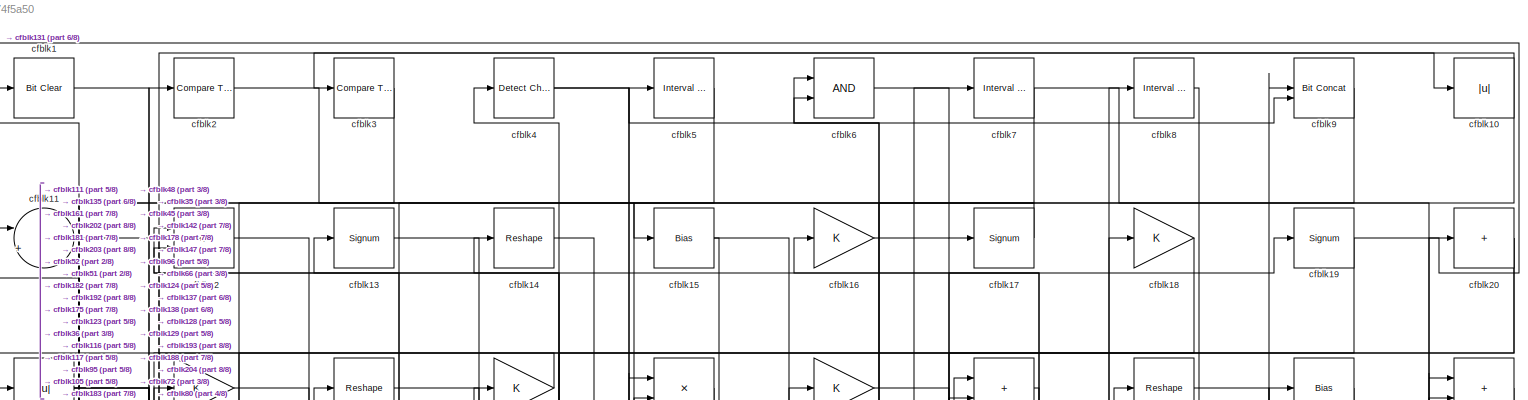
[diagram: root canvas - part 1/8, full width, top band]
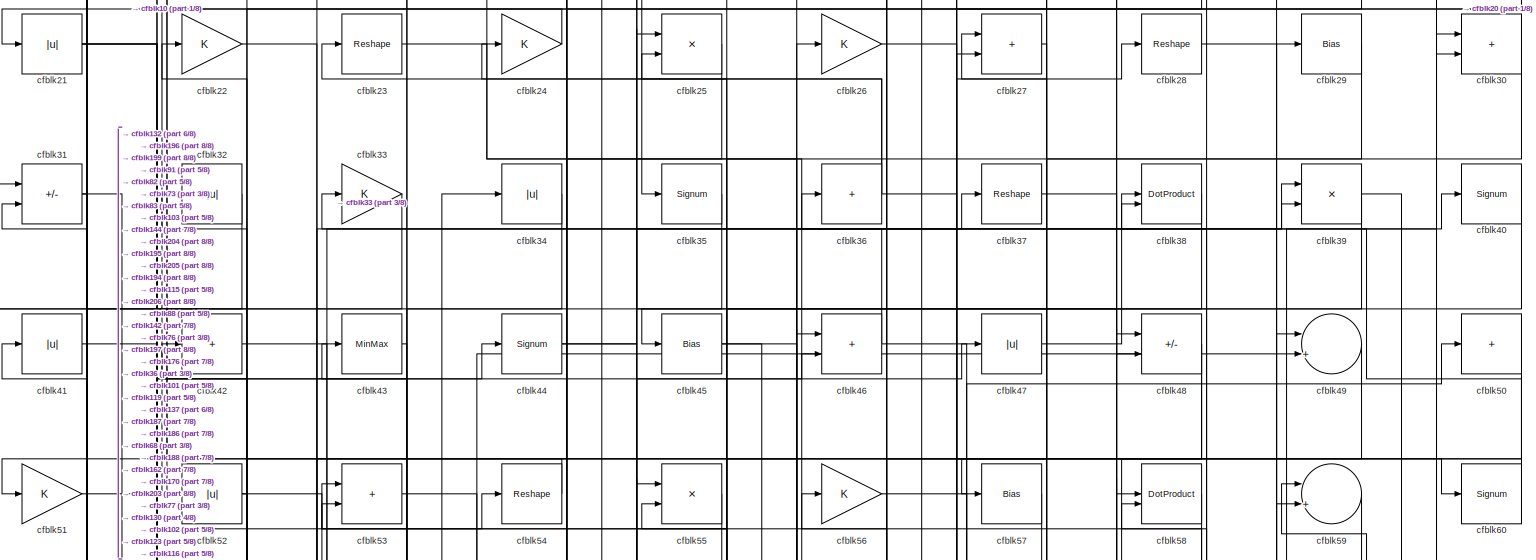
[diagram: root canvas - part 2/8, full width, top band]
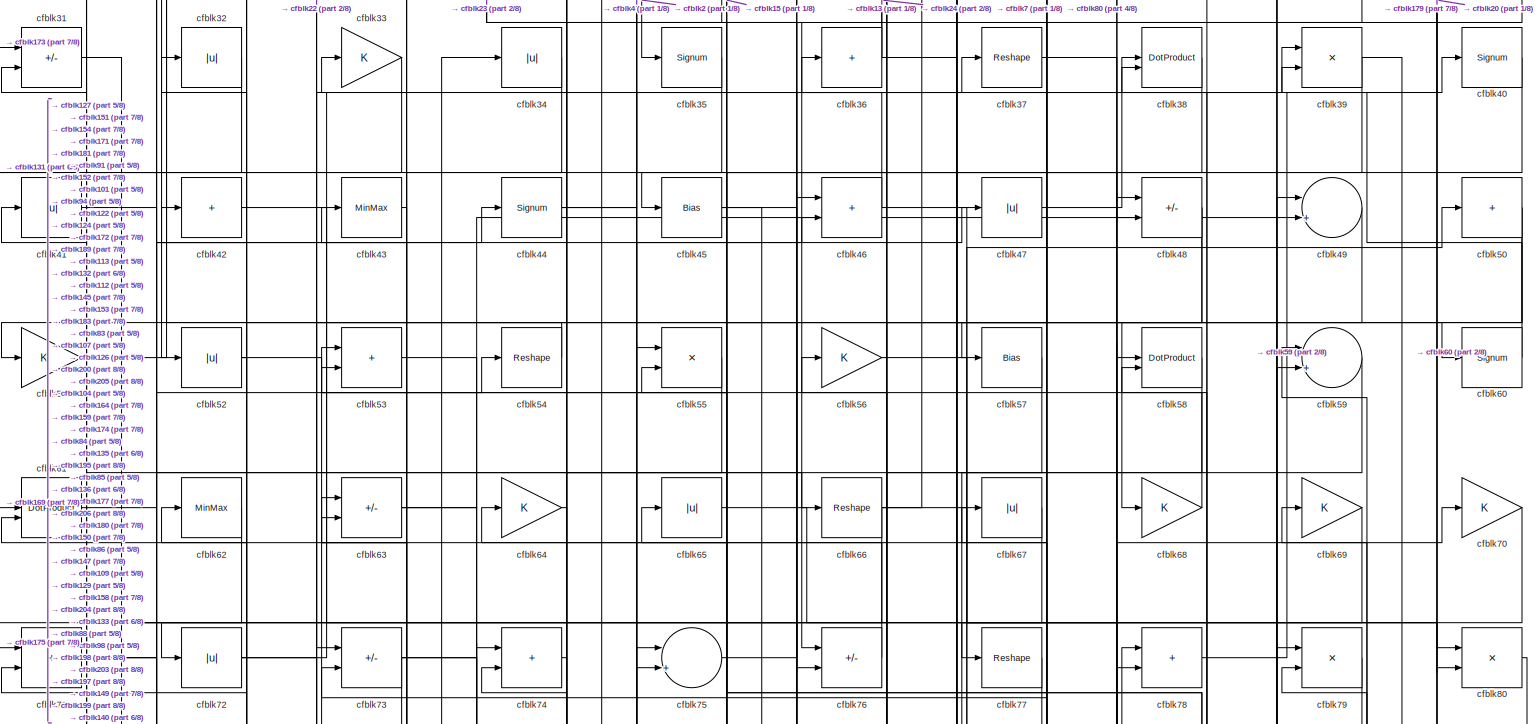
[diagram: root canvas - part 3/8, full width, top band]
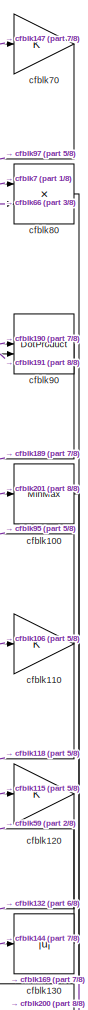
[diagram: root canvas - part 4/8, middle right region]
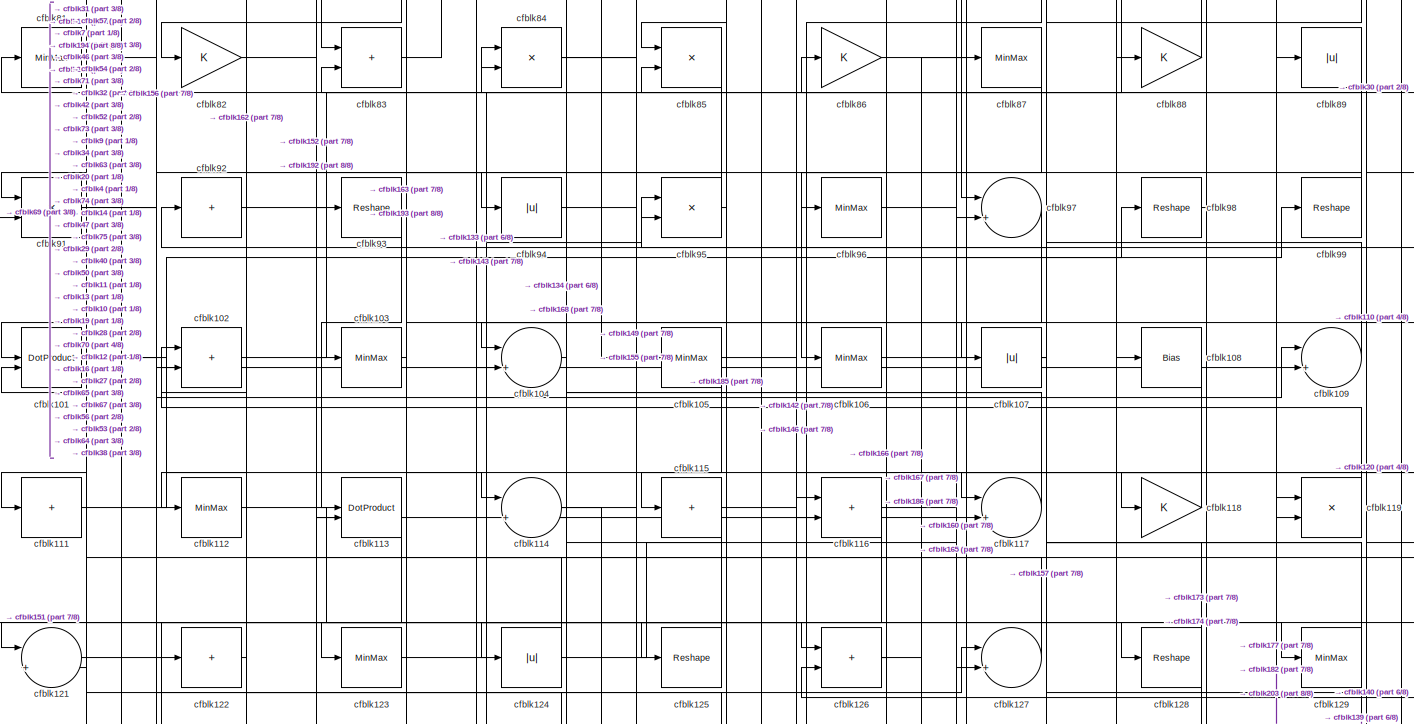
[diagram: root canvas - part 5/8, full width, middle band]
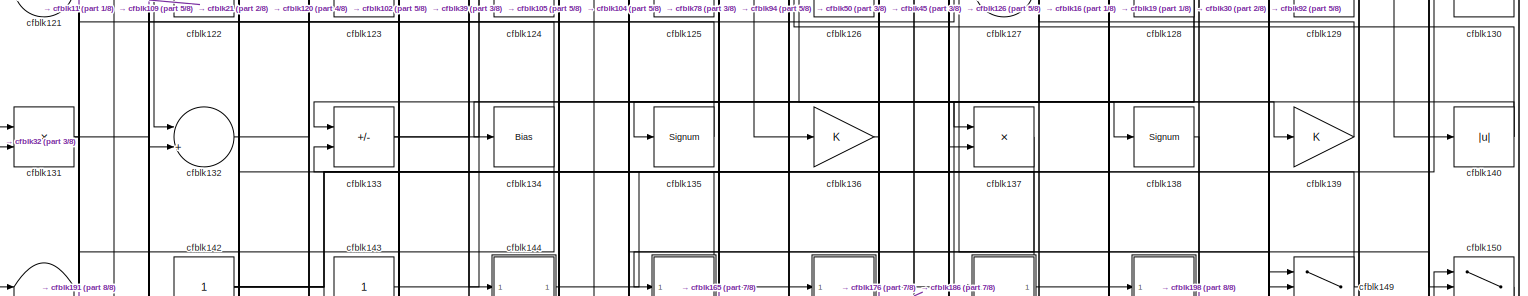
[diagram: root canvas - part 6/8, full width, middle band]
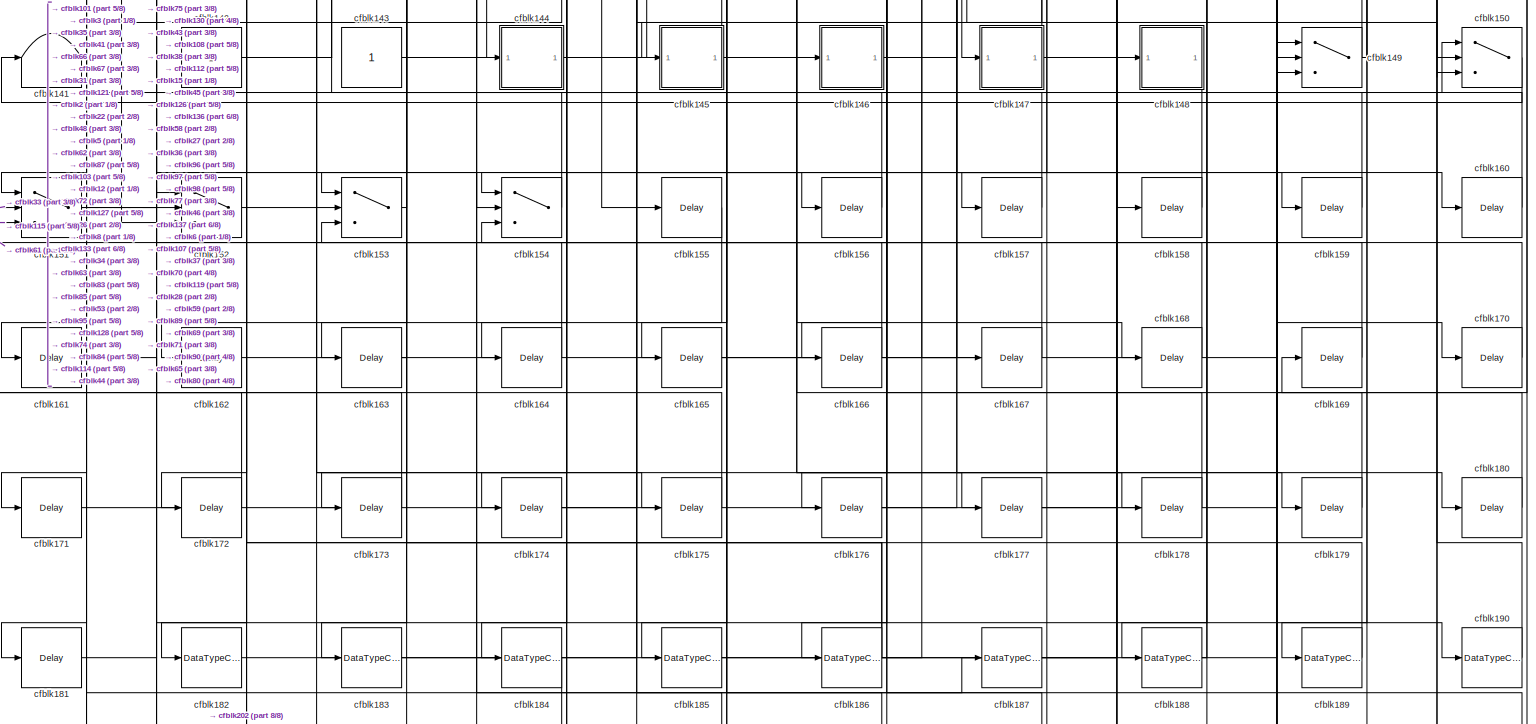
[diagram: root canvas - part 7/8, full width, bottom band]
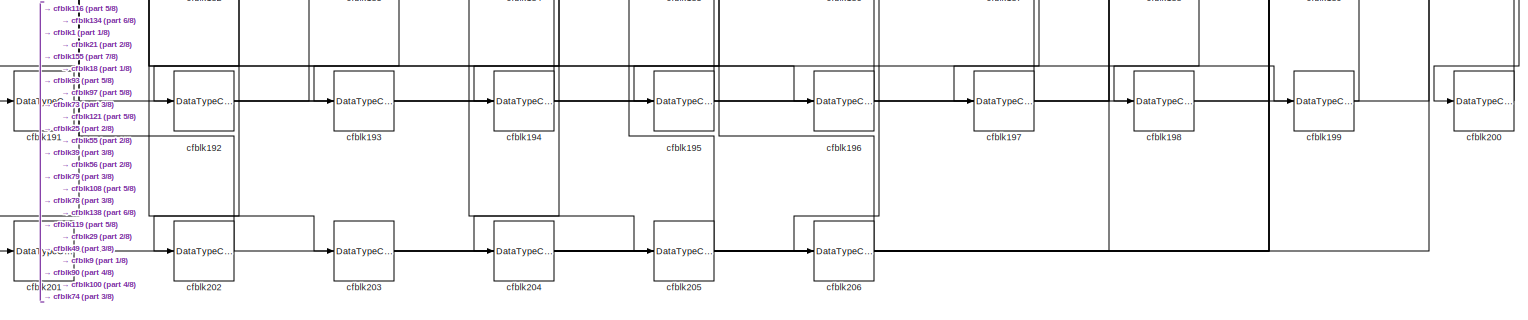
[diagram: root canvas - part 8/8, full width, bottom band]
MODEL slx_47e4374f5a50
KIND model
CONFIG AbsTol = auto
CONFIG EnableMultiTasking = off
CONFIG FixedStep = auto
CONFIG MaxStep = auto
CONFIG MinStep = auto
CONFIG RelTol = 1e-3
CONFIG SampleTimeConstraint = Unconstrained
CONFIG SolverName = VariableStepAuto
CONFIG StartTime = 0.0
CONFIG StopTime = 10.0
BLOCK [Reference] cfblk1  REF=simulink/Logic and Bit
Operations/Bit Clear
  LibrarySourceBlock = hdlsllib/Logic and Bit\nOperations/Bit Clear
  SourceBlock = simulink/Logic and Bit\nOperations/Bit Clear
  SourceType = Bit Clear
BLOCK [Abs] cfblk10
  SaturateOnIntegerOverflow = off
BLOCK [MinMax] cfblk100
BLOCK [DotProduct] cfblk101
  OutDataTypeStr = Inherit: Inherit via internal rule
BLOCK [Sum] cfblk102
  IconShape = rectangular
BLOCK [MinMax] cfblk103
BLOCK [Sum] cfblk104
  Inputs = |++
BLOCK [MinMax] cfblk105
BLOCK [MinMax] cfblk106
BLOCK [Abs] cfblk107
  SaturateOnIntegerOverflow = off
BLOCK [Bias] cfblk108
  Bias = 0.0
  SaturateOnIntegerOverflow = off
BLOCK [Sum] cfblk109
  Inputs = |++
BLOCK [Sum] cfblk11
  Inputs = |++
BLOCK [Gain] cfblk110
BLOCK [Sum] cfblk111
  IconShape = rectangular
  Inputs = +
BLOCK [MinMax] cfblk112
BLOCK [DotProduct] cfblk113
  OutDataTypeStr = Inherit: Inherit via internal rule
BLOCK [Sum] cfblk114
  Inputs = |++
BLOCK [Sum] cfblk115
  IconShape = rectangular
  Inputs = +
BLOCK [Sum] cfblk116
  IconShape = rectangular
BLOCK [Sum] cfblk117
  Inputs = |++
BLOCK [Gain] cfblk118
BLOCK [Product] cfblk119
  Inputs = */
  RndMeth = Zero
  SaturateOnIntegerOverflow = on
BLOCK [Sum] cfblk12
  IconShape = rectangular
  Inputs = +-
BLOCK [Gain] cfblk120
BLOCK [Sum] cfblk121
  Inputs = |++
BLOCK [Sum] cfblk122
  IconShape = rectangular
  Inputs = +
BLOCK [MinMax] cfblk123
BLOCK [Abs] cfblk124
  SaturateOnIntegerOverflow = off
BLOCK [Reshape] cfblk125
BLOCK [Sum] cfblk126
  IconShape = rectangular
BLOCK [Sum] cfblk127
  Inputs = |++
BLOCK [Reshape] cfblk128
BLOCK [MinMax] cfblk129
BLOCK [Signum] cfblk13
BLOCK [Abs] cfblk130
  SaturateOnIntegerOverflow = off
BLOCK [Product] cfblk131
  Inputs = */
  RndMeth = Zero
  SaturateOnIntegerOverflow = on
BLOCK [Sum] cfblk132
  Inputs = |++
BLOCK [Sum] cfblk133
  IconShape = rectangular
  Inputs = +-
BLOCK [Bias] cfblk134
  Bias = 0.0
  SaturateOnIntegerOverflow = off
BLOCK [Signum] cfblk135
BLOCK [Gain] cfblk136
BLOCK [Product] cfblk137
  Inputs = */
  RndMeth = Zero
  SaturateOnIntegerOverflow = on
BLOCK [Signum] cfblk138
BLOCK [Gain] cfblk139
BLOCK [Reshape] cfblk14
BLOCK [Abs] cfblk140
  SaturateOnIntegerOverflow = off
BLOCK [Terminator] cfblk141
BLOCK [Constant] cfblk142
  SampleTime = -1
BLOCK [Constant] cfblk143
  SampleTime = -1
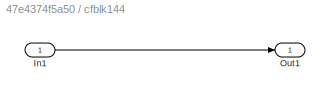
BLOCK [SubSystem] cfblk144
  LibrarySourceBlock = hdlsllib/Ports &\nSubsystems/Subsystem
BLOCK [Inport] cfblk144/In1
BLOCK [Outport] cfblk144/Out1
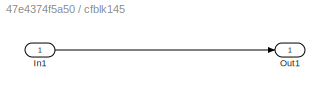
BLOCK [SubSystem] cfblk145
  LibrarySourceBlock = hdlsllib/Ports &\nSubsystems/Subsystem
BLOCK [Inport] cfblk145/In1
BLOCK [Outport] cfblk145/Out1
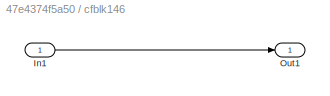
BLOCK [SubSystem] cfblk146
  LibrarySourceBlock = hdlsllib/Ports &\nSubsystems/Subsystem
BLOCK [Inport] cfblk146/In1
BLOCK [Outport] cfblk146/Out1
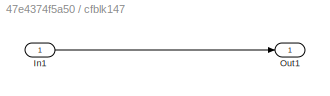
BLOCK [SubSystem] cfblk147
  LibrarySourceBlock = hdlsllib/Ports &\nSubsystems/Subsystem
BLOCK [Inport] cfblk147/In1
BLOCK [Outport] cfblk147/Out1
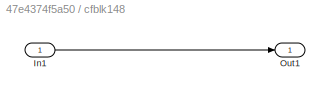
BLOCK [SubSystem] cfblk148
  LibrarySourceBlock = hdlsllib/Ports &\nSubsystems/Subsystem
BLOCK [Inport] cfblk148/In1
BLOCK [Outport] cfblk148/Out1
BLOCK [Switch] cfblk149
  InputSameDT = off
  SaturateOnIntegerOverflow = off
BLOCK [Bias] cfblk15
  Bias = 0.0
  SaturateOnIntegerOverflow = off
BLOCK [Switch] cfblk150
  InputSameDT = off
  SaturateOnIntegerOverflow = off
BLOCK [Switch] cfblk151
  InputSameDT = off
  SaturateOnIntegerOverflow = off
BLOCK [Switch] cfblk152
  InputSameDT = off
  SaturateOnIntegerOverflow = off
BLOCK [Switch] cfblk153
  InputSameDT = off
  SaturateOnIntegerOverflow = off
BLOCK [Switch] cfblk154
  InputSameDT = off
  SaturateOnIntegerOverflow = off
BLOCK [Delay] cfblk155
  InputPortMap = u0
  SampleTime = 1
BLOCK [Delay] cfblk156
  InputPortMap = u0
  SampleTime = 1
BLOCK [Delay] cfblk157
  InputPortMap = u0
  SampleTime = 1
BLOCK [Delay] cfblk158
  InputPortMap = u0
  SampleTime = 1
BLOCK [Delay] cfblk159
  InputPortMap = u0
  SampleTime = 1
BLOCK [Gain] cfblk16
BLOCK [Delay] cfblk160
  InputPortMap = u0
  SampleTime = 1
BLOCK [Delay] cfblk161
  InputPortMap = u0
  SampleTime = 1
BLOCK [Delay] cfblk162
  InputPortMap = u0
  SampleTime = 1
BLOCK [Delay] cfblk163
  InputPortMap = u0
  SampleTime = 1
BLOCK [Delay] cfblk164
  InputPortMap = u0
  SampleTime = 1
BLOCK [Delay] cfblk165
  InputPortMap = u0
  SampleTime = 1
BLOCK [Delay] cfblk166
  InputPortMap = u0
  SampleTime = 1
BLOCK [Delay] cfblk167
  InputPortMap = u0
  SampleTime = 1
BLOCK [Delay] cfblk168
  InputPortMap = u0
  SampleTime = 1
BLOCK [Delay] cfblk169
  InputPortMap = u0
  SampleTime = 1
BLOCK [Signum] cfblk17
BLOCK [Delay] cfblk170
  InputPortMap = u0
  SampleTime = 1
BLOCK [Delay] cfblk171
  InputPortMap = u0
  SampleTime = 1
BLOCK [Delay] cfblk172
  InputPortMap = u0
  SampleTime = 1
BLOCK [Delay] cfblk173
  InputPortMap = u0
  SampleTime = 1
BLOCK [Delay] cfblk174
  InputPortMap = u0
  SampleTime = 1
BLOCK [Delay] cfblk175
  InputPortMap = u0
  SampleTime = 1
BLOCK [Delay] cfblk176
  InputPortMap = u0
  SampleTime = 1
BLOCK [Delay] cfblk177
  InputPortMap = u0
  SampleTime = 1
BLOCK [Delay] cfblk178
  InputPortMap = u0
  SampleTime = 1
BLOCK [Delay] cfblk179
  InputPortMap = u0
  SampleTime = 1
BLOCK [Gain] cfblk18
BLOCK [Delay] cfblk180
  InputPortMap = u0
  SampleTime = 1
BLOCK [Delay] cfblk181
  InputPortMap = u0
  SampleTime = 1
BLOCK [DataTypeConversion] cfblk182
  OutDataTypeStr = uint8
  RndMeth = Floor
  SaturateOnIntegerOverflow = off
BLOCK [DataTypeConversion] cfblk183
  OutDataTypeStr = uint8
  RndMeth = Floor
  SaturateOnIntegerOverflow = off
BLOCK [DataTypeConversion] cfblk184
  OutDataTypeStr = uint8
  RndMeth = Floor
  SaturateOnIntegerOverflow = off
BLOCK [DataTypeConversion] cfblk185
  OutDataTypeStr = uint8
  RndMeth = Floor
  SaturateOnIntegerOverflow = off
BLOCK [DataTypeConversion] cfblk186
  RndMeth = Floor
  SaturateOnIntegerOverflow = off
BLOCK [DataTypeConversion] cfblk187
  OutDataTypeStr = uint8
  RndMeth = Floor
  SaturateOnIntegerOverflow = off
BLOCK [DataTypeConversion] cfblk188
  OutDataTypeStr = uint8
  RndMeth = Floor
  SaturateOnIntegerOverflow = off
BLOCK [DataTypeConversion] cfblk189
  OutDataTypeStr = uint8
  RndMeth = Floor
  SaturateOnIntegerOverflow = off
BLOCK [Signum] cfblk19
BLOCK [DataTypeConversion] cfblk190
  OutDataTypeStr = uint8
  RndMeth = Floor
  SaturateOnIntegerOverflow = off
BLOCK [DataTypeConversion] cfblk191
  OutDataTypeStr = uint8
  RndMeth = Floor
  SaturateOnIntegerOverflow = off
BLOCK [DataTypeConversion] cfblk192
  RndMeth = Floor
  SaturateOnIntegerOverflow = off
BLOCK [DataTypeConversion] cfblk193
  OutDataTypeStr = uint8
  RndMeth = Floor
  SaturateOnIntegerOverflow = off
BLOCK [DataTypeConversion] cfblk194
  OutDataTypeStr = uint8
  RndMeth = Floor
  SaturateOnIntegerOverflow = off
BLOCK [DataTypeConversion] cfblk195
  OutDataTypeStr = uint8
  RndMeth = Floor
  SaturateOnIntegerOverflow = off
BLOCK [DataTypeConversion] cfblk196
  OutDataTypeStr = uint8
  RndMeth = Floor
  SaturateOnIntegerOverflow = off
BLOCK [DataTypeConversion] cfblk197
  OutDataTypeStr = uint8
  RndMeth = Floor
  SaturateOnIntegerOverflow = off
BLOCK [DataTypeConversion] cfblk198
  OutDataTypeStr = uint8
  RndMeth = Floor
  SaturateOnIntegerOverflow = off
BLOCK [DataTypeConversion] cfblk199
  OutDataTypeStr = uint8
  RndMeth = Floor
  SaturateOnIntegerOverflow = off
BLOCK [Reference] cfblk2  REF=hdlsllib/Logic and Bit
Operations/Compare
To Zero
  SourceBlock = hdlsllib/Logic and Bit\nOperations/Compare\nTo Zero
  SourceType = Compare To Zero
BLOCK [Sum] cfblk20
  IconShape = rectangular
  Inputs = +
BLOCK [DataTypeConversion] cfblk200
  OutDataTypeStr = uint8
  RndMeth = Floor
  SaturateOnIntegerOverflow = off
BLOCK [DataTypeConversion] cfblk201
  OutDataTypeStr = uint8
  RndMeth = Floor
  SaturateOnIntegerOverflow = off
BLOCK [DataTypeConversion] cfblk202
  OutDataTypeStr = boolean
  RndMeth = Floor
  SaturateOnIntegerOverflow = off
BLOCK [DataTypeConversion] cfblk203
  RndMeth = Floor
  SaturateOnIntegerOverflow = off
BLOCK [DataTypeConversion] cfblk204
  RndMeth = Floor
  SaturateOnIntegerOverflow = off
BLOCK [DataTypeConversion] cfblk205
  OutDataTypeStr = uint8
  RndMeth = Floor
  SaturateOnIntegerOverflow = off
BLOCK [DataTypeConversion] cfblk206
  OutDataTypeStr = uint8
  RndMeth = Floor
  SaturateOnIntegerOverflow = off
BLOCK [Abs] cfblk21
  SaturateOnIntegerOverflow = off
BLOCK [Gain] cfblk22
BLOCK [Reshape] cfblk23
BLOCK [Gain] cfblk24
BLOCK [Product] cfblk25
  Inputs = */
  RndMeth = Zero
  SaturateOnIntegerOverflow = on
BLOCK [Gain] cfblk26
BLOCK [Sum] cfblk27
  IconShape = rectangular
BLOCK [Reshape] cfblk28
BLOCK [Bias] cfblk29
  Bias = 0.0
  SaturateOnIntegerOverflow = off
BLOCK [Reference] cfblk3  REF=hdlsllib/Logic and Bit
Operations/Compare
To Constant
  SourceBlock = hdlsllib/Logic and Bit\nOperations/Compare\nTo Constant
  SourceType = Compare To Constant
BLOCK [Sum] cfblk30
  IconShape = rectangular
BLOCK [Sum] cfblk31
  IconShape = rectangular
  Inputs = +-
BLOCK [Abs] cfblk32
  SaturateOnIntegerOverflow = off
BLOCK [Gain] cfblk33
BLOCK [Abs] cfblk34
  SaturateOnIntegerOverflow = off
BLOCK [Signum] cfblk35
BLOCK [Sum] cfblk36
  IconShape = rectangular
  Inputs = +
BLOCK [Reshape] cfblk37
BLOCK [DotProduct] cfblk38
  OutDataTypeStr = Inherit: Inherit via internal rule
BLOCK [Product] cfblk39
  Inputs = */
  RndMeth = Zero
  SaturateOnIntegerOverflow = on
BLOCK [Reference] cfblk4  REF=simulink/Logic and Bit
Operations/Detect
Change
  LibrarySourceBlock = hdlsllib/Logic and Bit\nOperations/Detect\nChange
  SourceBlock = simulink/Logic and Bit\nOperations/Detect\nChange
  SourceType = Detect Change
BLOCK [Signum] cfblk40
BLOCK [Abs] cfblk41
  SaturateOnIntegerOverflow = off
BLOCK [Sum] cfblk42
  IconShape = rectangular
  Inputs = +
BLOCK [MinMax] cfblk43
BLOCK [Signum] cfblk44
BLOCK [Bias] cfblk45
  Bias = 0.0
  SaturateOnIntegerOverflow = off
BLOCK [Sum] cfblk46
  IconShape = rectangular
BLOCK [Abs] cfblk47
  SaturateOnIntegerOverflow = off
BLOCK [Sum] cfblk48
  IconShape = rectangular
  Inputs = +-
BLOCK [Sum] cfblk49
  Inputs = |++
BLOCK [Reference] cfblk5  REF=hdlsllib/Logic and Bit
Operations/Interval Test
  SourceBlock = hdlsllib/Logic and Bit\nOperations/Interval Test
  SourceType = Interval Test
BLOCK [Sum] cfblk50
  IconShape = rectangular
  Inputs = +
BLOCK [Gain] cfblk51
BLOCK [Abs] cfblk52
  SaturateOnIntegerOverflow = off
BLOCK [Sum] cfblk53
  IconShape = rectangular
BLOCK [Reshape] cfblk54
BLOCK [Product] cfblk55
  Inputs = */
  RndMeth = Zero
  SaturateOnIntegerOverflow = on
BLOCK [Gain] cfblk56
BLOCK [Bias] cfblk57
  Bias = 0.0
  SaturateOnIntegerOverflow = off
BLOCK [DotProduct] cfblk58
  OutDataTypeStr = Inherit: Inherit via internal rule
BLOCK [Sum] cfblk59
  Inputs = |++
BLOCK [Logic] cfblk6
  AllPortsSameDT = off
  OutDataTypeStr = boolean
BLOCK [Signum] cfblk60
BLOCK [DotProduct] cfblk61
  OutDataTypeStr = Inherit: Inherit via internal rule
BLOCK [MinMax] cfblk62
BLOCK [Sum] cfblk63
  IconShape = rectangular
  Inputs = +-
BLOCK [Gain] cfblk64
BLOCK [Abs] cfblk65
  SaturateOnIntegerOverflow = off
BLOCK [Reshape] cfblk66
BLOCK [Abs] cfblk67
  SaturateOnIntegerOverflow = off
BLOCK [Gain] cfblk68
BLOCK [Gain] cfblk69
BLOCK [Reference] cfblk7  REF=hdlsllib/Logic and Bit
Operations/Interval Test
  SourceBlock = hdlsllib/Logic and Bit\nOperations/Interval Test
  SourceType = Interval Test
BLOCK [Gain] cfblk70
BLOCK [Sum] cfblk71
  IconShape = rectangular
BLOCK [Abs] cfblk72
  SaturateOnIntegerOverflow = off
BLOCK [Sum] cfblk73
  IconShape = rectangular
  Inputs = +-
BLOCK [Sum] cfblk74
  IconShape = rectangular
BLOCK [Sum] cfblk75
  Inputs = |++
BLOCK [Sum] cfblk76
  IconShape = rectangular
  Inputs = +-
BLOCK [Reshape] cfblk77
BLOCK [Sum] cfblk78
  IconShape = rectangular
BLOCK [Product] cfblk79
  Inputs = */
  RndMeth = Zero
  SaturateOnIntegerOverflow = on
BLOCK [Reference] cfblk8  REF=hdlsllib/Logic and Bit
Operations/Interval Test
  SourceBlock = hdlsllib/Logic and Bit\nOperations/Interval Test
  SourceType = Interval Test
BLOCK [Product] cfblk80
  Inputs = */
  RndMeth = Zero
  SaturateOnIntegerOverflow = on
BLOCK [MinMax] cfblk81
BLOCK [Gain] cfblk82
BLOCK [Sum] cfblk83
  IconShape = rectangular
BLOCK [Product] cfblk84
  Inputs = */
  RndMeth = Zero
  SaturateOnIntegerOverflow = on
BLOCK [Product] cfblk85
  Inputs = */
  RndMeth = Zero
  SaturateOnIntegerOverflow = on
BLOCK [Gain] cfblk86
BLOCK [MinMax] cfblk87
BLOCK [Gain] cfblk88
BLOCK [Abs] cfblk89
  SaturateOnIntegerOverflow = off
BLOCK [Reference] cfblk9  REF=hdlsllib/Logic and Bit
Operations/Bit Concat
  SourceBlock = hdlsllib/Logic and Bit\nOperations/Bit Concat
  SourceType = Bit Concat
BLOCK [DotProduct] cfblk90
  OutDataTypeStr = Inherit: Inherit via internal rule
BLOCK [Product] cfblk91
  Inputs = */
  RndMeth = Zero
  SaturateOnIntegerOverflow = on
BLOCK [Sum] cfblk92
  IconShape = rectangular
  Inputs = +
BLOCK [Reshape] cfblk93
BLOCK [Abs] cfblk94
  SaturateOnIntegerOverflow = off
BLOCK [Product] cfblk95
  Inputs = */
  RndMeth = Zero
  SaturateOnIntegerOverflow = on
BLOCK [MinMax] cfblk96
BLOCK [Sum] cfblk97
  Inputs = |++
BLOCK [Reshape] cfblk98
BLOCK [Reshape] cfblk99
LINE cfblk100:1 -> cfblk200:1
NET cfblk101:1 -> cfblk114:1, cfblk46:2
LINE cfblk102:1 -> cfblk30:1
LINE cfblk103:1 -> cfblk53:1
LINE cfblk104:1 -> cfblk74:2
NET cfblk105:1 -> cfblk128:1, cfblk133:1
LINE cfblk106:1 -> cfblk110:1
NET cfblk107:1 -> cfblk157:1, cfblk67:1
LINE cfblk108:1 -> cfblk185:1
LINE cfblk109:1 -> cfblk65:1
NET cfblk10:1 -> cfblk3:1, cfblk96:1
NET cfblk110:1 -> cfblk118:1, cfblk95:1
LINE cfblk111:1 -> cfblk99:1
LINE cfblk112:1 -> cfblk146:1
LINE cfblk113:1 -> cfblk121:1
NET cfblk114:1 -> cfblk149:3, cfblk155:1
NET cfblk115:1 -> cfblk120:1, cfblk151:3
NET cfblk116:1 -> cfblk201:1, cfblk28:1
NET cfblk117:1 -> cfblk12:2, cfblk14:1
LINE cfblk118:1 -> cfblk117:1
LINE cfblk119:1 -> cfblk27:1
LINE cfblk11:1 -> cfblk116:2
LINE cfblk120:1 -> cfblk132:1
LINE cfblk121:1 -> cfblk156:1
LINE cfblk122:1 -> cfblk42:1
LINE cfblk123:1 -> cfblk30:2
NET cfblk124:1 -> cfblk19:1, cfblk32:1
LINE cfblk125:1 -> cfblk81:1
NET cfblk126:1 -> cfblk166:1, cfblk167:1
LINE cfblk127:1 -> cfblk31:2
NET cfblk128:1 -> cfblk12:1, cfblk173:1, cfblk174:1
NET cfblk129:1 -> cfblk102:1, cfblk16:1, cfblk73:2
LINE cfblk12:1 -> cfblk175:1
LINE cfblk130:1 -> cfblk59:1
NET cfblk131:1 -> cfblk109:1, cfblk11:2
LINE cfblk132:1 -> cfblk39:2
NET cfblk133:1 -> cfblk104:2, cfblk78:1
NET cfblk134:1 -> cfblk102:2, cfblk191:1
LINE cfblk135:1 -> cfblk11:1
LINE cfblk136:1 -> cfblk176:1
LINE cfblk137:1 -> cfblk165:1
LINE cfblk138:1 -> cfblk198:1
LINE cfblk139:1 -> cfblk92:1
LINE cfblk13:1 -> cfblk116:1
NET cfblk140:1 -> cfblk126:2, cfblk134:1
NET cfblk142:1 -> cfblk127:2, cfblk150:1, cfblk26:1, cfblk8:1
LINE cfblk143:1 -> cfblk95:2
LINE cfblk144/In1:1 -> cfblk144/Out1:1
LINE cfblk144:1 -> cfblk130:1
LINE cfblk145/In1:1 -> cfblk145/Out1:1
NET cfblk145:1 -> cfblk168:1, cfblk43:1
LINE cfblk146/In1:1 -> cfblk146/Out1:1
LINE cfblk146:1 -> cfblk98:1
LINE cfblk147/In1:1 -> cfblk147/Out1:1
NET cfblk147:1 -> cfblk6:1, cfblk70:1
LINE cfblk148/In1:1 -> cfblk148/Out1:1
LINE cfblk148:1 -> cfblk184:1
NET cfblk149:1 -> cfblk69:1, cfblk71:2
LINE cfblk14:1 -> cfblk105:1
LINE cfblk150:1 -> cfblk141:1
NET cfblk151:1 -> cfblk127:1, cfblk44:1
LINE cfblk152:1 -> cfblk103:1
LINE cfblk153:1 -> cfblk63:1
LINE cfblk154:1 -> cfblk41:1
LINE cfblk155:1 -> cfblk202:1
LINE cfblk156:1 -> cfblk84:2
LINE cfblk157:1 -> cfblk101:2
LINE cfblk158:1 -> cfblk154:1
LINE cfblk159:1 -> cfblk63:2
NET cfblk15:1 -> cfblk178:1, cfblk45:1
LINE cfblk160:1 -> cfblk149:1
LINE cfblk161:1 -> cfblk190:1
LINE cfblk162:1 -> cfblk59:2
LINE cfblk163:1 -> cfblk83:2
LINE cfblk164:1 -> cfblk153:3
LINE cfblk165:1 -> cfblk97:2
LINE cfblk166:1 -> cfblk152:1
LINE cfblk167:1 -> cfblk154:3
LINE cfblk168:1 -> cfblk114:2
LINE cfblk169:1 -> cfblk61:1
LINE cfblk16:1 -> cfblk138:1
LINE cfblk170:1 -> cfblk153:2
LINE cfblk171:1 -> cfblk48:1
LINE cfblk172:1 -> cfblk152:2
LINE cfblk173:1 -> cfblk31:1
LINE cfblk174:1 -> cfblk75:2
LINE cfblk175:1 -> cfblk71:1
LINE cfblk176:1 -> cfblk27:2
LINE cfblk177:1 -> cfblk119:2
LINE cfblk178:1 -> cfblk6:2
LINE cfblk179:1 -> cfblk149:2
LINE cfblk17:1 -> cfblk15:1
LINE cfblk180:1 -> cfblk46:1
LINE cfblk181:1 -> cfblk2:1
LINE cfblk182:1 -> cfblk89:1
LINE cfblk183:1 -> cfblk5:1
LINE cfblk184:1 -> cfblk187:1
LINE cfblk185:1 -> cfblk148:1
NET cfblk186:1 -> cfblk133:2, cfblk22:1, cfblk87:1
LINE cfblk187:1 -> cfblk58:1
LINE cfblk188:1 -> cfblk58:2
LINE cfblk189:1 -> cfblk62:1
LINE cfblk18:1 -> cfblk192:1
LINE cfblk190:1 -> cfblk90:1
LINE cfblk191:1 -> cfblk90:2
NET cfblk192:1 -> cfblk108:1, cfblk93:1
LINE cfblk193:1 -> cfblk18:1
LINE cfblk194:1 -> cfblk121:2
LINE cfblk195:1 -> cfblk55:1
LINE cfblk196:1 -> cfblk55:2
LINE cfblk197:1 -> cfblk56:1
LINE cfblk198:1 -> cfblk79:1
LINE cfblk199:1 -> cfblk79:2
NET cfblk19:1 -> cfblk131:1, cfblk137:2
LINE cfblk1:1 -> cfblk203:1
LINE cfblk200:1 -> cfblk74:1
LINE cfblk201:1 -> cfblk100:1
LINE cfblk202:1 -> cfblk1:1
NET cfblk203:1 -> cfblk119:1, cfblk29:1, cfblk49:1
NET cfblk204:1 -> cfblk78:2, cfblk9:1
LINE cfblk205:1 -> cfblk25:1
LINE cfblk206:1 -> cfblk25:2
NET cfblk20:1 -> cfblk124:1, cfblk52:1
NET cfblk21:1 -> cfblk132:2, cfblk196:1, cfblk199:1
LINE cfblk22:1 -> cfblk73:1
LINE cfblk23:1 -> cfblk76:1
LINE cfblk24:1 -> cfblk21:1
LINE cfblk25:1 -> cfblk204:1
LINE cfblk26:1 -> cfblk60:1
LINE cfblk27:1 -> cfblk57:1
LINE cfblk28:1 -> cfblk170:1
LINE cfblk29:1 -> cfblk115:1
LINE cfblk2:1 -> cfblk35:1
LINE cfblk30:1 -> cfblk137:1
NET cfblk31:1 -> cfblk152:3, cfblk91:1
LINE cfblk32:1 -> cfblk131:2
LINE cfblk33:1 -> cfblk151:2
LINE cfblk34:1 -> cfblk153:1
LINE cfblk35:1 -> cfblk181:1
NET cfblk36:1 -> cfblk13:1, cfblk180:1, cfblk24:1
LINE cfblk37:1 -> cfblk158:1
LINE cfblk38:1 -> cfblk145:1
NET cfblk39:1 -> cfblk140:1, cfblk195:1
LINE cfblk3:1 -> cfblk161:1
LINE cfblk40:1 -> cfblk85:1
LINE cfblk41:1 -> cfblk94:1
LINE cfblk42:1 -> cfblk76:2
LINE cfblk43:1 -> cfblk183:1
NET cfblk44:1 -> cfblk159:1, cfblk37:1
NET cfblk45:1 -> cfblk136:1, cfblk177:1
NET cfblk46:1 -> cfblk150:2, cfblk36:1
LINE cfblk47:1 -> cfblk38:2
NET cfblk48:1 -> cfblk172:1, cfblk68:1
LINE cfblk49:1 -> cfblk206:1
NET cfblk4:1 -> cfblk48:2, cfblk9:2
NET cfblk50:1 -> cfblk113:2, cfblk135:1
LINE cfblk51:1 -> cfblk10:1
NET cfblk52:1 -> cfblk82:1, cfblk83:1
LINE cfblk53:1 -> cfblk144:1
LINE cfblk54:1 -> cfblk51:1
LINE cfblk55:1 -> cfblk194:1
LINE cfblk56:1 -> cfblk88:1
LINE cfblk57:1 -> cfblk101:1
LINE cfblk58:1 -> cfblk186:1
LINE cfblk59:1 -> cfblk77:1
LINE cfblk5:1 -> cfblk182:1
LINE cfblk60:1 -> cfblk33:1
LINE cfblk61:1 -> cfblk66:1
LINE cfblk62:1 -> cfblk72:1
NET cfblk63:1 -> cfblk107:1, cfblk49:2
LINE cfblk64:1 -> cfblk104:1
LINE cfblk65:1 -> cfblk150:3
NET cfblk66:1 -> cfblk171:1, cfblk7:1, cfblk80:2
LINE cfblk67:1 -> cfblk151:1
LINE cfblk68:1 -> cfblk23:1
LINE cfblk69:1 -> cfblk91:2
LINE cfblk6:1 -> cfblk17:1
LINE cfblk70:1 -> cfblk97:1
NET cfblk71:1 -> cfblk129:1, cfblk154:2
NET cfblk72:1 -> cfblk179:1, cfblk20:1
NET cfblk73:1 -> cfblk112:1, cfblk126:1, cfblk205:1
LINE cfblk74:1 -> cfblk164:1
LINE cfblk75:1 -> cfblk39:1
LINE cfblk76:1 -> cfblk61:2
LINE cfblk77:1 -> cfblk147:1
LINE cfblk78:1 -> cfblk40:1
LINE cfblk79:1 -> cfblk197:1
NET cfblk7:1 -> cfblk111:1, cfblk80:1
LINE cfblk80:1 -> cfblk169:1
LINE cfblk81:1 -> cfblk122:1
LINE cfblk82:1 -> cfblk117:2
LINE cfblk83:1 -> cfblk34:1
NET cfblk84:1 -> cfblk47:1, cfblk75:1
LINE cfblk85:1 -> cfblk163:1
LINE cfblk86:1 -> cfblk50:1
LINE cfblk87:1 -> cfblk162:1
NET cfblk88:1 -> cfblk53:2, cfblk64:1
NET cfblk89:1 -> cfblk106:1, cfblk85:2
LINE cfblk8:1 -> cfblk188:1
LINE cfblk90:1 -> cfblk189:1
NET cfblk91:1 -> cfblk109:2, cfblk54:1
LINE cfblk92:1 -> cfblk84:1
LINE cfblk93:1 -> cfblk113:1
LINE cfblk94:1 -> cfblk139:1
NET cfblk95:1 -> cfblk125:1, cfblk4:1
LINE cfblk96:1 -> cfblk160:1
LINE cfblk97:1 -> cfblk193:1
LINE cfblk98:1 -> cfblk38:1
LINE cfblk99:1 -> cfblk86:1
LINE cfblk9:1 -> cfblk123:1
note: NET lines group one-source signal fan-out (src -> all destinations, sorted); 1:1 wires keep LINE
